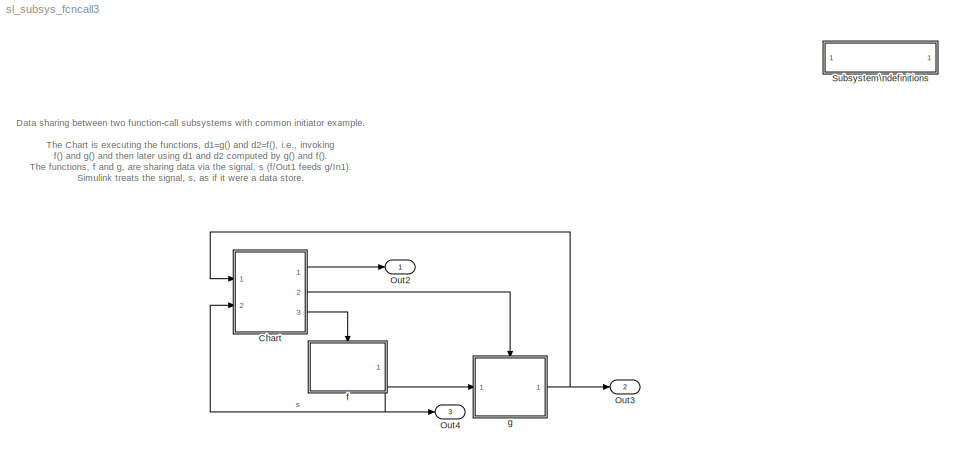
MODEL sl_subsys_fcncall3
KIND model
BLOCK [SubSystem]  Subsystem\ndefinitions
  MaskDisplay = disp('Subsystem\\ndefinitions')\n\n
  MaskIconFrame = on
  MaskIconOpaque = on
  MaskIconRotate = none
  MaskIconUnits = autoscale
  MinAlgLoopOccurrences = off
  OpenFcn = helpview([matlabroot,'/toolbox/simulink/simdemos/sl_subsys_definitions.html']);
  Ports = []
  PropExecContextAcrossSSBoundary = on
  RTWSystemCode = Auto
  TreatAsAtomicUnit = off
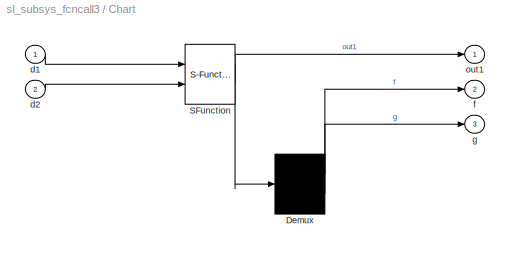
BLOCK [SubSystem] Chart
  MaskDescription = Stateflow diagram
  MaskDisplay = plot(sf('Private','sfblk','xIcon'),sf('Private','sfblk','yIcon'));text(0.5,0,sf('Private', 'sfblk', 'tIcon'),'HorizontalAl','Center','VerticalAl','Bottom');
  MaskIconFrame = off
  MaskIconOpaque = off
  MaskIconRotate = none
  MaskIconUnits = autoscale
  MaskSelfModifiable = on
  MaskType = Stateflow
  MinAlgLoopOccurrences = off
  Ports = [2, 3]
  PropExecContextAcrossSSBoundary = on
  RTWSystemCode = Auto
  TreatAsAtomicUnit = off
BLOCK [Demux] Chart/ Demux 
  Outputs = 2
  Ports = [1, 2]
BLOCK [S-Function] Chart/ SFunction 
  FunctionName = sf_sfun
  PortCounts = [2 2]
  Ports = [2, 2]
  Tag = Stateflow S-Function sl_subsys_fcncall3 2
BLOCK [Inport] Chart/d1
  IconDisplay = Port number
  LatchInput = off
  Port = 1
BLOCK [Inport] Chart/d2
  IconDisplay = Port number
  LatchInput = off
  Port = 2
BLOCK [Outport] Chart/f
  IconDisplay = Port number
  Port = 2
BLOCK [Outport] Chart/g
  IconDisplay = Port number
  Port = 3
BLOCK [Outport] Chart/out1
  IconDisplay = Port number
BLOCK [Outport] Out2
  IconDisplay = Port number
BLOCK [Outport] Out3
  IconDisplay = Port number
  Port = 2
BLOCK [Outport] Out4
  IconDisplay = Port number
  Port = 3
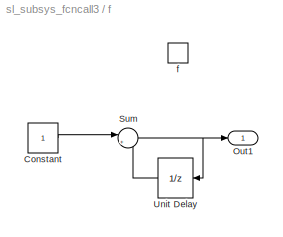
BLOCK [SubSystem] f
  MinAlgLoopOccurrences = off
  Ports = [0, 1, 0, 1]
  PropExecContextAcrossSSBoundary = on
  RTWSystemCode = Auto
  TreatAsAtomicUnit = on
BLOCK [Constant] f/Constant
BLOCK [Outport] f/Out1
  IconDisplay = Port number
BLOCK [Sum] f/Sum
  IconShape = round
  Inputs = |++
  Ports = [2, 1]
BLOCK [UnitDelay] f/Unit Delay
  SampleTime = -1
BLOCK [TriggerPort] f/f
  Ports = []
  StatesWhenEnabling = reset
  TriggerType = function-call
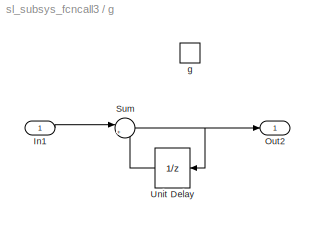
BLOCK [SubSystem] g
  MinAlgLoopOccurrences = off
  Ports = [1, 1, 0, 1]
  PropExecContextAcrossSSBoundary = on
  RTWSystemCode = Auto
  TreatAsAtomicUnit = on
BLOCK [Inport] g/In1
  IconDisplay = Port number
  LatchInput = off
  Port = 1
BLOCK [Outport] g/Out2
  IconDisplay = Port number
BLOCK [Sum] g/Sum
  IconShape = round
  Inputs = |++
  Ports = [2, 1]
BLOCK [UnitDelay] g/Unit Delay
  SampleTime = -1
BLOCK [TriggerPort] g/g
  Ports = []
  StatesWhenEnabling = reset
  TriggerType = function-call
ANNOTATION (root): Data sharing between two function-call subsystems with common initiator example.\n\nThe Chart is executing the functions, d1=g() and d2=f(), i.e., invoking \nf() and g() and then later using d1 and d2 computed by g() and f().\nThe functions, f and g, are sharing data via the signal, s (f/Out1 feeds g/In1).\nSimulink treats the signal, s, as if it were a data store.\n\nIn general the inputs to a fu...<+341ch>
LINE Chart/ Demux :1 -> Chart/f:1
LINE Chart/ Demux :2 -> Chart/g:1
LINE Chart/ SFunction :1 -> Chart/ Demux :1
LINE Chart/ SFunction :2 -> Chart/out1:1
LINE Chart/d1:1 -> Chart/ SFunction :1
LINE Chart/d2:1 -> Chart/ SFunction :2
LINE Chart:1 -> Out2:1
LINE Chart:2 -> g:trigger
LINE Chart:3 -> f:trigger
LINE f/Constant:1 -> f/Sum:1
NET f/Sum:1 -> f/Out1:1, f/Unit Delay:1
LINE f/Unit Delay:1 -> f/Sum:2
NET f:1 -> Chart:2, Out4:1, g:1
LINE g/In1:1 -> g/Sum:1
NET g/Sum:1 -> g/Out2:1, g/Unit Delay:1
LINE g/Unit Delay:1 -> g/Sum:2
NET g:1 -> Chart:1, Out3:1
note: NET lines group one-source signal fan-out (src -> all destinations, sorted); 1:1 wires keep LINE
CHART Chart states=2 transitions=3
  STATE_LABEL 'one/\\nentry: f; out1= d1+d2;'
  STATE_LABEL 'two/\\nentry: g; out1=d1-d2;'
